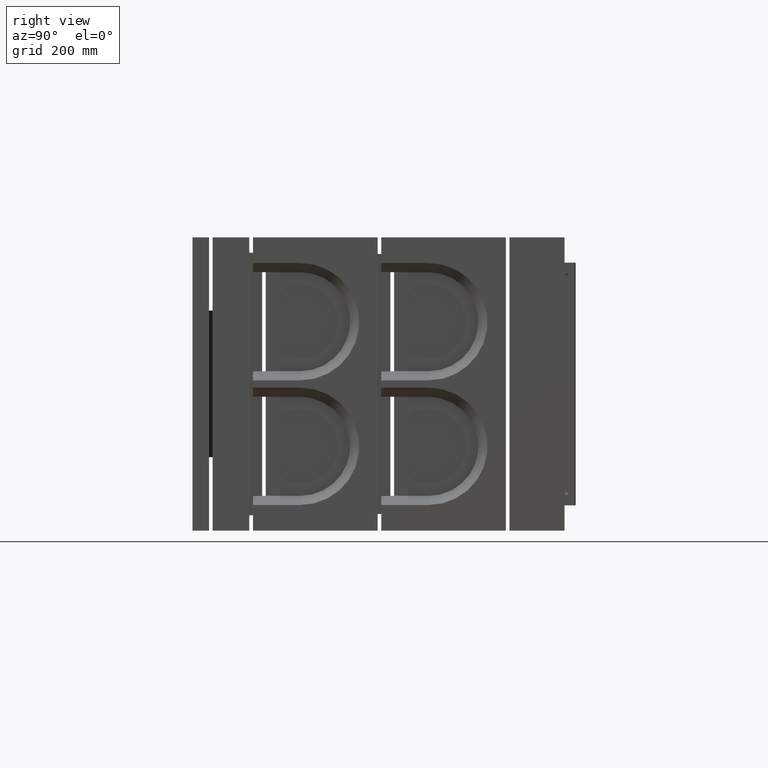
[diagram: clean part render]
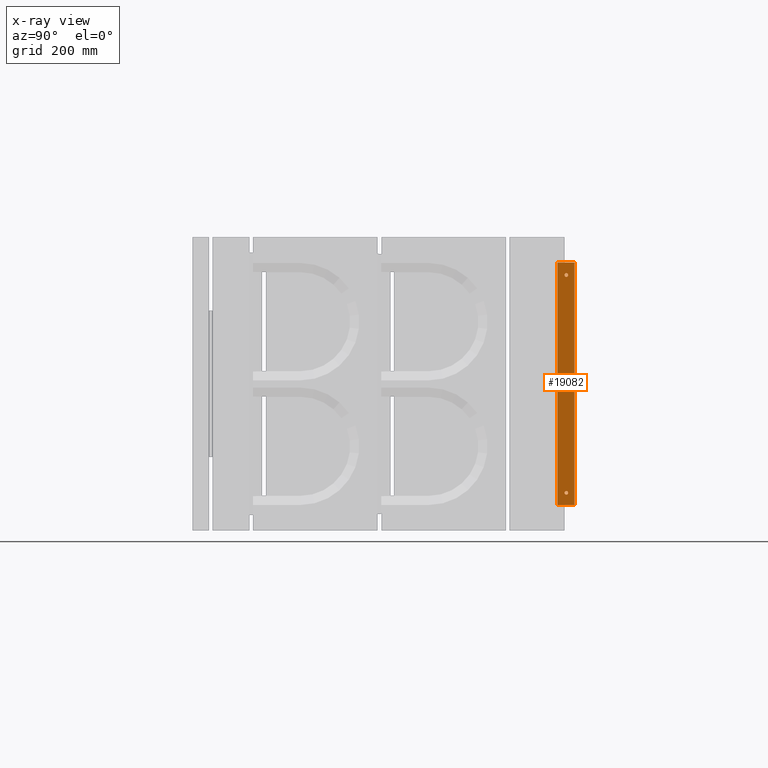
[diagram: x-ray — body ghosted, one internal face saturated and labeled with its STEP entity id]
A machine part, right view, then the same camera in x-ray: the body is ghosted and one INTERNAL B-rep face — a face not visible from any outside direction — is saturated and labeled: STEP entity #19082.
In plain terms, the highlighted planar face has unit normal (1, 0, -0).
Its self-contained STEP definition (entity closure, byte-faithful):
#226 = EDGE_CURVE ( 'NONE', #8548, #17050, #24714, .T. ) ;
#1382 = EDGE_LOOP ( 'NONE', ( #21346, #37131, #29085, #38402 ) ) ;
#1394 = CARTESIAN_POINT ( 'NONE',  ( -653.5000000000003411, 1042.000000000000455, 331.0000000000001137 ) ) ;
#3967 = EDGE_CURVE ( 'NONE', #19138, #19138, #38462, .T. ) ;
#4421 = CARTESIAN_POINT ( 'NONE',  ( -653.5000000000003411, 1042.000000000000455, 331.0000000000001137 ) ) ;
#6583 = ORIENTED_EDGE ( 'NONE', *, *, #3967, .T. ) ;
#7061 = DIRECTION ( 'NONE',  ( 1.107270303814982924E-16, -1.000000000000000000, 0.0000000000000000000 ) ) ;
#8040 = VERTEX_POINT ( 'NONE', #21380 ) ;
#8058 = CARTESIAN_POINT ( 'NONE',  ( -653.5000000000003411, 1042.000000000000455, 331.0000000000001137 ) ) ;
#8413 = EDGE_LOOP ( 'NONE', ( #20209 ) ) ;
#8548 = VERTEX_POINT ( 'NONE', #38667 ) ;
#8604 = CARTESIAN_POINT ( 'NONE',  ( -653.5000000000003411, 995.0000000000003411, 331.0000000000001137 ) ) ;
#8858 = DIRECTION ( 'NONE',  ( -0.0000000000000000000, -0.0000000000000000000, -1.000000000000000000 ) ) ;
#9102 = VECTOR ( 'NONE', #7061, 1000.000000000000000 ) ;
#10151 = PLANE ( 'NONE',  #13541 ) ;
#10598 = DIRECTION ( 'NONE',  ( 0.0000000000000000000, -1.000000000000000000, 0.0000000000000000000 ) ) ;
#10894 = CARTESIAN_POINT ( 'NONE',  ( -653.5000000000003411, 995.0000000000003411, -330.9999999999998863 ) ) ;
#13541 = AXIS2_PLACEMENT_3D ( 'NONE', #4421, #22052, #30930 ) ;
#14217 = DIRECTION ( 'NONE',  ( -0.0000000000000000000, -0.0000000000000000000, -1.000000000000000000 ) ) ;
#16136 = CARTESIAN_POINT ( 'NONE',  ( -653.5000000000003411, 1020.000000000000455, -296.9999999999999432 ) ) ;
#16284 = CARTESIAN_POINT ( 'NONE',  ( -653.5000000000003411, 1015.000000000000568, 297.0000000000001705 ) ) ;
#16930 = CARTESIAN_POINT ( 'NONE',  ( -653.5000000000003411, 1015.000000000000568, -296.9999999999999432 ) ) ;
#17050 = VERTEX_POINT ( 'NONE', #10894 ) ;
#17198 = VERTEX_POINT ( 'NONE', #16930 ) ;
#17827 = FACE_BOUND ( 'NONE', #8413, .T. ) ;
#19082 = ADVANCED_FACE ( 'NONE', ( #17827, #19712, #32300 ), #10151, .T. ) ;
#19138 = VERTEX_POINT ( 'NONE', #16284 ) ;
#19606 = LINE ( 'NONE', #29208, #32204 ) ;
#19712 = FACE_BOUND ( 'NONE', #24988, .T. ) ;
#19758 = LINE ( 'NONE', #8058, #31885 ) ;
#20209 = ORIENTED_EDGE ( 'NONE', *, *, #28520, .F. ) ;
#20593 = AXIS2_PLACEMENT_3D ( 'NONE', #25365, #30989, #10598 ) ;
#21346 = ORIENTED_EDGE ( 'NONE', *, *, #21544, .F. ) ;
#21380 = CARTESIAN_POINT ( 'NONE',  ( -653.5000000000003411, 1042.000000000000455, -330.9999999999998863 ) ) ;
#21544 = EDGE_CURVE ( 'NONE', #8040, #17050, #31100, .T. ) ;
#22052 = DIRECTION ( 'NONE',  ( 1.000000000000000000, 1.107270303814982924E-16, -0.0000000000000000000 ) ) ;
#22573 = EDGE_CURVE ( 'NONE', #32584, #8040, #19758, .T. ) ;
#22637 = DIRECTION ( 'NONE',  ( 1.000000000000000000, 1.107270303814982677E-16, 0.0000000000000000000 ) ) ;
#23019 = DIRECTION ( 'NONE',  ( 0.0000000000000000000, -1.000000000000000000, 0.0000000000000000000 ) ) ;
#24714 = LINE ( 'NONE', #8604, #28451 ) ;
#24988 = EDGE_LOOP ( 'NONE', ( #6583 ) ) ;
#25365 = CARTESIAN_POINT ( 'NONE',  ( -653.5000000000003411, 1020.000000000000455, 297.0000000000001705 ) ) ;
#28451 = VECTOR ( 'NONE', #8858, 1000.000000000000000 ) ;
#28520 = EDGE_CURVE ( 'NONE', #17198, #17198, #33594, .T. ) ;
#29085 = ORIENTED_EDGE ( 'NONE', *, *, #38544, .T. ) ;
#29208 = CARTESIAN_POINT ( 'NONE',  ( -653.5000000000003411, 1042.000000000000455, 331.0000000000001137 ) ) ;
#29338 = DIRECTION ( 'NONE',  ( 1.107270303814982924E-16, -1.000000000000000000, 0.0000000000000000000 ) ) ;
#30832 = CARTESIAN_POINT ( 'NONE',  ( -653.5000000000003411, 1042.000000000000455, -330.9999999999998863 ) ) ;
#30930 = DIRECTION ( 'NONE',  ( -1.107270303814982924E-16, 1.000000000000000000, 0.0000000000000000000 ) ) ;
#30989 = DIRECTION ( 'NONE',  ( -1.000000000000000000, -1.107270303814982677E-16, 0.0000000000000000000 ) ) ;
#31100 = LINE ( 'NONE', #30832, #9102 ) ;
#31885 = VECTOR ( 'NONE', #14217, 1000.000000000000000 ) ;
#32204 = VECTOR ( 'NONE', #29338, 1000.000000000000000 ) ;
#32300 = FACE_OUTER_BOUND ( 'NONE', #1382, .T. ) ;
#32584 = VERTEX_POINT ( 'NONE', #1394 ) ;
#33594 = CIRCLE ( 'NONE', #38568, 4.999999999999893419 ) ;
#37131 = ORIENTED_EDGE ( 'NONE', *, *, #22573, .F. ) ;
#38402 = ORIENTED_EDGE ( 'NONE', *, *, #226, .T. ) ;
#38462 = CIRCLE ( 'NONE', #20593, 4.999999999999893419 ) ;
#38544 = EDGE_CURVE ( 'NONE', #32584, #8548, #19606, .T. ) ;
#38568 = AXIS2_PLACEMENT_3D ( 'NONE', #16136, #22637, #23019 ) ;
#38667 = CARTESIAN_POINT ( 'NONE',  ( -653.5000000000003411, 995.0000000000003411, 331.0000000000001137 ) ) ;